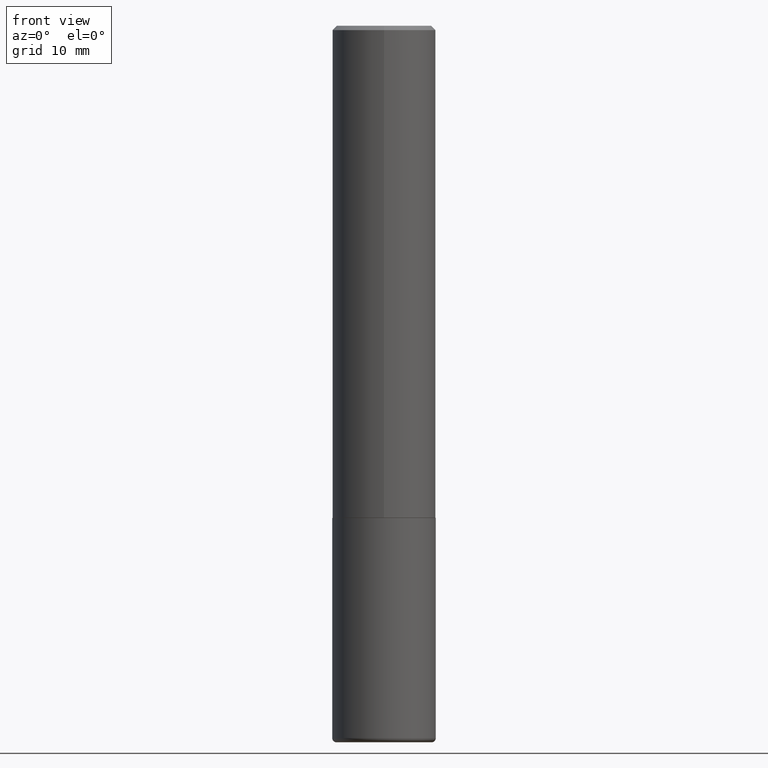
[diagram: clean part render]
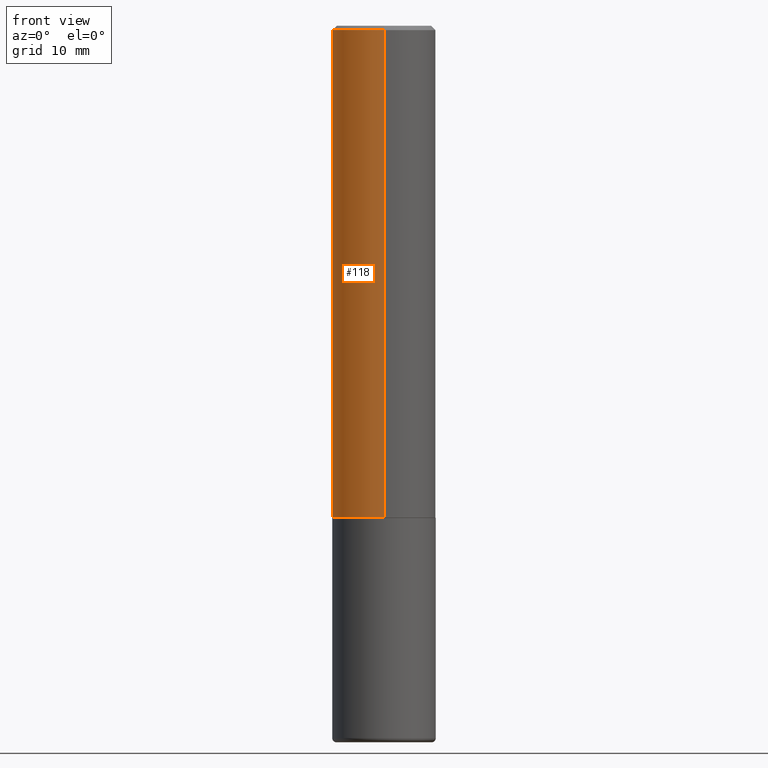
[diagram: same view with one face highlighted and labeled with its STEP entity id]
A machine part, front view. The second image highlights one B-rep face of the part: STEP entity #118.
In plain terms, the highlighted cylindrical surface (partial cylindrical patch) has radius 5.9995 mm, axis along (-0, 0, 1).
Its self-contained STEP definition (entity closure, byte-faithful):
#14 = FACE_OUTER_BOUND ( 'NONE', #134, .T. ) ;
#23 = CARTESIAN_POINT ( 'NONE',  ( 5.495819205382747907E-29, -7.816865403143895871E-15, -2.243100000000000094 ) ) ;
#32 = ORIENTED_EDGE ( 'NONE', *, *, #45, .F. ) ;
#44 = DIRECTION ( 'NONE',  ( -2.450099953360415403E-29, 3.484849272499618930E-15, 1.000000000000000000 ) ) ;
#45 = EDGE_CURVE ( 'NONE', #64, #197, #113, .T. ) ;
#64 = VERTEX_POINT ( 'NONE', #408 ) ;
#69 = DIRECTION ( 'NONE',  ( -2.450099953360415403E-29, 3.484849272499618930E-15, 1.000000000000000000 ) ) ;
#71 = AXIS2_PLACEMENT_3D ( 'NONE', #307, #44, #300 ) ;
#102 = VERTEX_POINT ( 'NONE', #368 ) ;
#111 = CARTESIAN_POINT ( 'NONE',  ( 4.900199906720849654E-31, -6.969698544999262955E-17, -0.02000000000000007674 ) ) ;
#113 = CIRCLE ( 'NONE', #141, 0.2362000000000000210 ) ;
#118 = ADVANCED_FACE ( 'NONE', ( #14 ), #241, .T. ) ;
#126 = ORIENTED_EDGE ( 'NONE', *, *, #262, .T. ) ;
#129 = VECTOR ( 'NONE', #287, 39.37007874015748143 ) ;
#134 = EDGE_LOOP ( 'NONE', ( #138, #126, #363, #32 ) ) ;
#138 = ORIENTED_EDGE ( 'NONE', *, *, #309, .F. ) ;
#141 = AXIS2_PLACEMENT_3D ( 'NONE', #111, #69, #402 ) ;
#145 = CARTESIAN_POINT ( 'NONE',  ( -1.649375784469497117E-15, -0.2362000000000001598, 8.231213981644106002E-16 ) ) ;
#161 = CARTESIAN_POINT ( 'NONE',  ( 1.678301941865357577E-15, 0.2362000000000001598, -8.231213981644106002E-16 ) ) ;
#170 = VERTEX_POINT ( 'NONE', #238 ) ;
#181 = AXIS2_PLACEMENT_3D ( 'NONE', #23, #413, #189 ) ;
#187 = LINE ( 'NONE', #161, #129 ) ;
#189 = DIRECTION ( 'NONE',  ( -6.982962677686265922E-15, -1.000000000000000000, 3.469747663417772663E-15 ) ) ;
#197 = VERTEX_POINT ( 'NONE', #285 ) ;
#214 = VECTOR ( 'NONE', #239, 39.37007874015748143 ) ;
#238 = CARTESIAN_POINT ( 'NONE',  ( -1.649375784469443080E-15, -0.2362000000000081257, -2.243099999999999206 ) ) ;
#239 = DIRECTION ( 'NONE',  ( -2.450099953360415403E-29, 3.484849272499618930E-15, 1.000000000000000000 ) ) ;
#241 = CYLINDRICAL_SURFACE ( 'NONE', #71, 0.2362000000000001598 ) ;
#262 = EDGE_CURVE ( 'NONE', #102, #170, #317, .T. ) ;
#285 = CARTESIAN_POINT ( 'NONE',  ( -1.620449627073635276E-15, -0.2362000000000001043, -0.01999999999999925449 ) ) ;
#287 = DIRECTION ( 'NONE',  ( -2.450099953360415403E-29, 3.484849272499618930E-15, 1.000000000000000000 ) ) ;
#300 = DIRECTION ( 'NONE',  ( -6.982962677686265922E-15, -1.000000000000000000, 3.484849272499619324E-15 ) ) ;
#307 = CARTESIAN_POINT ( 'NONE',  ( 0.000000000000000000, 0.000000000000000000, 0.000000000000000000 ) ) ;
#309 = EDGE_CURVE ( 'NONE', #102, #64, #187, .T. ) ;
#317 = CIRCLE ( 'NONE', #181, 0.2362000000000002986 ) ;
#331 = EDGE_CURVE ( 'NONE', #170, #197, #403, .T. ) ;
#363 = ORIENTED_EDGE ( 'NONE', *, *, #331, .T. ) ;
#368 = CARTESIAN_POINT ( 'NONE',  ( 1.678301941865385779E-15, 0.2361999999999924715, -2.243100000000000982 ) ) ;
#402 = DIRECTION ( 'NONE',  ( -6.982962677686265922E-15, -1.000000000000000000, 3.487819265831411350E-15 ) ) ;
#403 = LINE ( 'NONE', #145, #214 ) ;
#408 = CARTESIAN_POINT ( 'NONE',  ( 1.649375784469496722E-15, 0.2361999999999999655, -0.02000000000000090247 ) ) ;
#413 = DIRECTION ( 'NONE',  ( -2.450099953360415403E-29, 3.484849272499618930E-15, 1.000000000000000000 ) ) ;